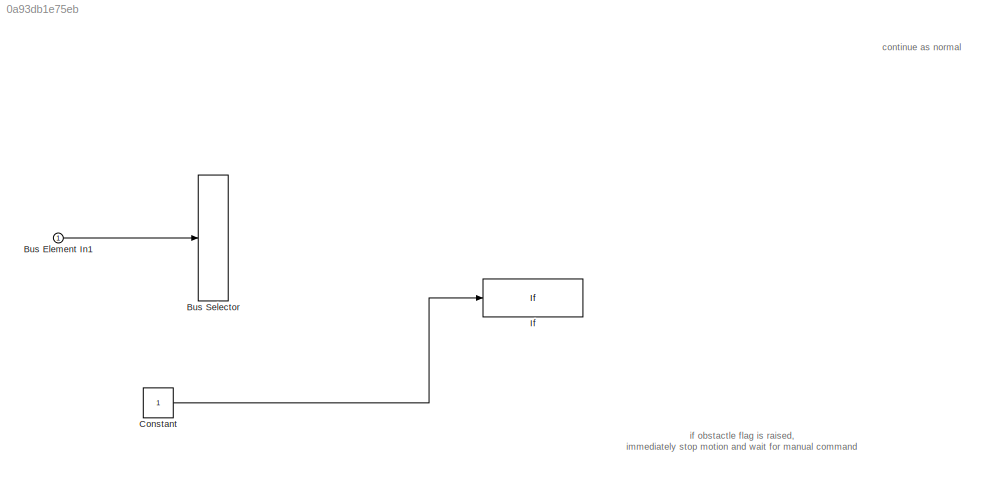
MODEL slx_0a93db1e75eb
KIND model
CONFIG AbsTol = auto
CONFIG EnableMultiTasking = off
CONFIG FixedStep = auto
CONFIG MaxStep = auto
CONFIG MinStep = auto
CONFIG RelTol = 1e-3
CONFIG SampleTimeConstraint = Unconstrained
CONFIG SolverName = VariableStepAuto
CONFIG StartTime = 0.0
CONFIG StopTime = 10.0
BLOCK [Inport] Bus Element In1
BLOCK [BusSelector] Bus Selector
  Commented = on
  OutputSignals = velocity,attitude,drone status,camera angle,geolocation,battery level,obstactle warning
  Ports = [1, 7]
BLOCK [Constant] Constant
BLOCK [If] If
  IfExpression = u1 == 0
  Ports = [1, 2]
ANNOTATION (root): continue as normal
ANNOTATION (root): if obstactle flag is raised, immediately stop motion and wait for manual command
LINE Bus Element In1:1 -> Bus Selector:1
LINE Constant:1 -> If:1
